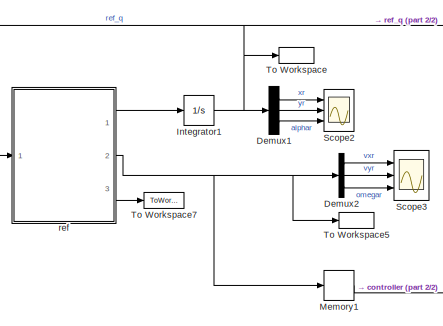
[diagram: root canvas - part 1/2, top left region]
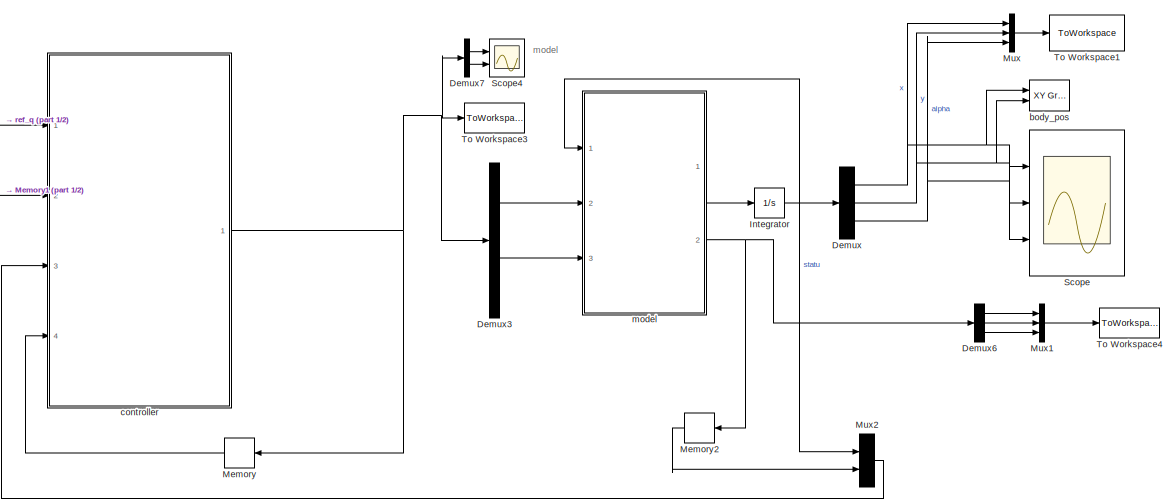
[diagram: root canvas - part 2/2, center side, full height]
MODEL slx_228549e2a371
KIND model
CONFIG AbsTol = auto
CONFIG EnableMultiTasking = off
CONFIG FixedStep = 0.05
CONFIG MaxStep = 0.05
CONFIG MinStep = auto
CONFIG RelTol = 1e-3
CONFIG SampleTimeConstraint = Unconstrained
CONFIG Solver = VariableStepAuto
CONFIG SolverName = VariableStepAuto
CONFIG StartTime = 0.0
CONFIG StopTime = 30
BLOCK [Demux] Demux
  DisplayOption = bar
  Outputs = 3
  Ports = [1, 3]
BLOCK [Demux] Demux1
  DisplayOption = bar
  Outputs = 3
  Ports = [1, 3]
BLOCK [Demux] Demux2
  DisplayOption = bar
  Outputs = 3
  Ports = [1, 3]
BLOCK [Demux] Demux3
  DisplayOption = bar
  Outputs = 2
  Ports = [1, 2]
BLOCK [Demux] Demux6
  DisplayOption = bar
  Outputs = 3
  Ports = [1, 3]
BLOCK [Demux] Demux7
  DisplayOption = bar
  Outputs = 2
  Ports = [1, 2]
BLOCK [Integrator] Integrator
  IgnoreLimit = on
  InitialCondition = [0; 0; pi/4;]
  Ports = [1, 1]
BLOCK [Integrator] Integrator1
  InitialCondition = [0;0;pi/4]
  Ports = [1, 1]
BLOCK [Memory] Memory
  X0 = [0; 0]
BLOCK [Memory] Memory1
  X0 = [0.00001; 0.00001 ; 0.000001]
BLOCK [Memory] Memory2
  X0 = [0.001 0 0]
BLOCK [Mux] Mux
  DisplayOption = bar
  Inputs = 3
  Ports = [3, 1]
BLOCK [Mux] Mux1
  DisplayOption = bar
  Inputs = 3
  Ports = [3, 1]
BLOCK [Mux] Mux2
  DisplayOption = bar
  Inputs = 2
  Ports = [2, 1]
BLOCK [Scope] Scope
  NumInputPorts = 3
  Ports = [3]
  ScopeSpecificationString = Simulink.scopes.TimeScopeBlockCfg('CurrentConfiguration', extmgr.ConfigurationSet(extmgr.Configuration('Core','General UI',true),extmgr.Configuration('Core','Source UI',true),extmgr.Configuration('Sources','WiredSimulink',true,'DataLoggingVariableName','ScopeData1'),extmgr.Configuration('Visuals','Time Domain',true,'SerializedDisplays',{struct('MinYLimReal','-4.45166','MaxYLimReal','2.71685','YLab...<+2688ch>
BLOCK [Scope] Scope2
  NumInputPorts = 3
  Ports = [3]
  ScopeSpecificationString = Simulink.scopes.TimeScopeBlockCfg('CurrentConfiguration', extmgr.ConfigurationSet(extmgr.Configuration('Core','General UI',true),extmgr.Configuration('Core','Source UI',true),extmgr.Configuration('Sources','WiredSimulink',true,'DataLoggingVariableName','ScopeData3'),extmgr.Configuration('Visuals','Time Domain',true,'SerializedDisplays',{struct('MinYLimReal','-4.5','MaxYLimReal','0.5','YLabelReal',...<+2773ch>
BLOCK [Scope] Scope3
  NumInputPorts = 3
  Ports = [3]
  ScopeSpecificationString = Simulink.scopes.TimeScopeBlockCfg('CurrentConfiguration', extmgr.ConfigurationSet(extmgr.Configuration('Core','General UI',true),extmgr.Configuration('Core','Source UI',true),extmgr.Configuration('Sources','WiredSimulink',true,'DataLoggingVariableName','ScopeData4'),extmgr.Configuration('Visuals','Time Domain',true,'SerializedDisplays',{struct('MinYLimReal','0.9','MaxYLimReal','1.1','YLabelReal','...<+2743ch>
BLOCK [Scope] Scope4
  NumInputPorts = 2
  Ports = [2]
  ScopeSpecificationString = Simulink.scopes.TimeScopeBlockCfg('CurrentConfiguration', extmgr.ConfigurationSet(extmgr.Configuration('Core','General UI',true),extmgr.Configuration('Core','Source UI',true),extmgr.Configuration('Sources','WiredSimulink',true,'DataLoggingVariableName','ScopeData1'),extmgr.Configuration('Visuals','Time Domain',true,'SerializedDisplays',{struct('MinYLimReal','-3154.38477','MaxYLimReal','2134.35305'...<+2064ch>
BLOCK [ToWorkspace] To Workspace
  FixptAsFi = on
  MaxDataPoints = inf
  Ports = [1]
  SampleTime = -1
  Save2DSignal = 3-D array (concatenate along third dimension)
  VariableName = ref_q
BLOCK [ToWorkspace] To Workspace1
  FixptAsFi = on
  MaxDataPoints = inf
  Ports = [1]
  SampleTime = -1
  Save2DSignal = 3-D array (concatenate along third dimension)
  VariableName = body_position
BLOCK [ToWorkspace] To Workspace3
  FixptAsFi = on
  MaxDataPoints = inf
  Ports = [1]
  SampleTime = -1
  Save2DSignal = 3-D array (concatenate along third dimension)
  VariableName = control_u
BLOCK [ToWorkspace] To Workspace4
  FixptAsFi = on
  MaxDataPoints = inf
  Ports = [1]
  SampleTime = -1
  Save2DSignal = 3-D array (concatenate along third dimension)
  VariableName = body_vel
BLOCK [ToWorkspace] To Workspace5
  FixptAsFi = on
  MaxDataPoints = inf
  Ports = [1]
  SampleTime = -1
  Save2DSignal = 3-D array (concatenate along third dimension)
  VariableName = ref_vel
BLOCK [ToWorkspace] To Workspace7
  FixptAsFi = on
  MaxDataPoints = inf
  Ports = [1]
  SampleTime = -1
  Save2DSignal = 3-D array (concatenate along third dimension)
  VariableName = ref_f
BLOCK [Reference] body_pos  REF=simulink/Sinks/XY Graph
  Ports = [2]
  SourceBlock = simulink/Sinks/XY Graph
  SourceProductBaseCode = SL
  SourceProductName = Simulink
  SourceType = XY scope.
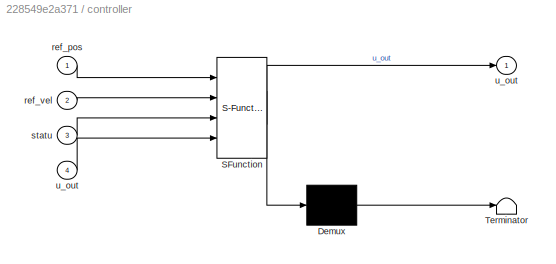
BLOCK [SubSystem] controller
  ErrorFcn = Stateflow.Translate.translate
  PermitHierarchicalResolution = ExplicitOnly
  Ports = [4, 1]
  RequestExecContextInheritance = off
  SFBlockType = MATLAB Function
  TreatAsAtomicUnit = on
  Variant = off
BLOCK [Demux] controller/ Demux 
  Outputs = 1
  Ports = [1, 1]
BLOCK [S-Function] controller/ SFunction 
  EnableBusSupport = on
  FunctionName = sf_sfun
  PortCounts = [4 2]
  Ports = [4, 2]
  SFcnIsStateOwnerBlock = off
  SFunctionDeploymentMode = off
  Tag = Stateflow S-Function Copy_of_sim2020_7_21 1
BLOCK [Terminator] controller/ Terminator 
BLOCK [Inport] controller/ref_pos
  IconDisplay = Port number
BLOCK [Inport] controller/ref_vel
  IconDisplay = Port number
  Port = 2
BLOCK [Inport] controller/statu
  IconDisplay = Port number
  Port = 3
BLOCK [Outport] controller/u_out
  IconDisplay = Port number
BLOCK [Inport] controller/u_out 
  IconDisplay = Port number
  Port = 4
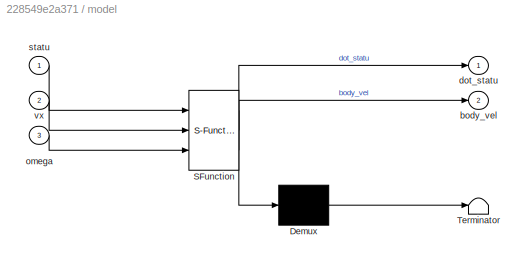
BLOCK [SubSystem] model
  ErrorFcn = Stateflow.Translate.translate
  PermitHierarchicalResolution = ExplicitOnly
  Ports = [3, 2]
  RequestExecContextInheritance = off
  SFBlockType = MATLAB Function
  TreatAsAtomicUnit = on
  Variant = off
BLOCK [Demux] model/ Demux 
  Outputs = 1
  Ports = [1, 1]
BLOCK [S-Function] model/ SFunction 
  EnableBusSupport = on
  FunctionName = sf_sfun
  PortCounts = [3 3]
  Ports = [3, 3]
  SFcnIsStateOwnerBlock = off
  SFunctionDeploymentMode = off
  Tag = Stateflow S-Function Copy_of_sim2020_7_21 2
BLOCK [Terminator] model/ Terminator 
BLOCK [Outport] model/body_vel
  IconDisplay = Port number
  Port = 2
BLOCK [Outport] model/dot_statu
  IconDisplay = Port number
BLOCK [Inport] model/omega
  IconDisplay = Port number
  Port = 3
BLOCK [Inport] model/statu
  IconDisplay = Port number
BLOCK [Inport] model/vx
  IconDisplay = Port number
  Port = 2
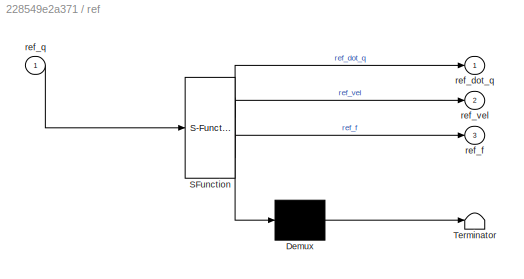
BLOCK [SubSystem] ref
  ErrorFcn = Stateflow.Translate.translate
  PermitHierarchicalResolution = ExplicitOnly
  Ports = [1, 3]
  RequestExecContextInheritance = off
  SFBlockType = MATLAB Function
  TreatAsAtomicUnit = on
  Variant = off
BLOCK [Demux] ref/ Demux 
  Outputs = 1
  Ports = [1, 1]
BLOCK [S-Function] ref/ SFunction 
  EnableBusSupport = on
  FunctionName = sf_sfun
  PortCounts = [1 4]
  Ports = [1, 4]
  SFcnIsStateOwnerBlock = off
  SFunctionDeploymentMode = off
  Tag = Stateflow S-Function Copy_of_sim2020_7_21 4
BLOCK [Terminator] ref/ Terminator 
BLOCK [Outport] ref/ref_dot_q
  IconDisplay = Port number
BLOCK [Outport] ref/ref_f
  IconDisplay = Port number
  Port = 3
BLOCK [Inport] ref/ref_q
  IconDisplay = Port number
BLOCK [Outport] ref/ref_vel
  IconDisplay = Port number
  Port = 2
ANNOTATION (root): model
LINE Demux1:1 -> Scope2:1
LINE Demux1:2 -> Scope2:2
LINE Demux1:3 -> Scope2:3
LINE Demux2:1 -> Scope3:1
LINE Demux2:2 -> Scope3:2
LINE Demux2:3 -> Scope3:3
LINE Demux3:1 -> model:2
LINE Demux3:2 -> model:3
LINE Demux6:1 -> Mux1:1
LINE Demux6:2 -> Mux1:2
LINE Demux6:3 -> Mux1:3
LINE Demux7:1 -> Scope4:1
LINE Demux7:2 -> Scope4:2
NET Demux:1 -> Mux:1, Scope:1, body_pos:1
NET Demux:2 -> Mux:2, Scope:2, body_pos:2
NET Demux:3 -> Mux:3, Scope:3
NET Integrator1:1 -> Demux1:1, To Workspace:1, controller:1, ref:1
NET Integrator:1 -> Demux:1, Mux2:1, model:1
LINE Memory1:1 -> controller:2
LINE Memory2:1 -> Mux2:2
LINE Memory:1 -> controller:4
LINE Mux1:1 -> To Workspace4:1
LINE Mux2:1 -> controller:3
LINE Mux:1 -> To Workspace1:1
NET controller:1 -> Demux3:1, Demux7:1, Memory:1, To Workspace3:1
LINE model:1 -> Integrator:1
NET model:2 -> Demux6:1, Memory2:1
LINE ref:1 -> Integrator1:1
NET ref:2 -> Demux2:1, Memory1:1, To Workspace5:1
LINE ref:3 -> To Workspace7:1
note: NET lines group one-source signal fan-out (src -> all destinations, sorted); 1:1 wires keep LINE
CHART controller states=1 transitions=1
  STATE_LABEL 'eML_blk_kernel()'
  STATE_LABEL 'SCRIPT:\nfunction u_out  = my_MPC_controller(ref_pos, ref_vel, statu, u_out)\n\n% 程序上没有问题，在运动学模型上是可以完成任务的\n% 最近修改时间：7.25 \n% 基于运动学模型的MPC控制器\n% u_out=[vx ;  omega]\n% ref_vel=[xr yr alphar vr omegar]\n% e = [ex ey ealpha]\n\nNc= 10; Np=20; %预测时域Np\t控制时域Nc\nT=0.05; \n\n% 测试是否能得到\n%    statu=[2; -2; pi/2; 0.001; 0.001; 0.001];\n%    u_out=[0; 0];\n%    ref_pos=[0;0;pi/4]; ref_vel=[2; 0; 0];  \n%% 底盘参数\nd = 0.18;\tl = 0....<+2799ch>'
CHART model states=1 transitions=1
  STATE_LABEL 'eML_blk_kernel()'
  STATE_LABEL 'SCRIPT:\nfunction [dot_statu, body_vel] = model(statu, vx ,omega)\n\nx = statu(1);\ny = statu(2);\nalpha = statu(3);\n\ndot_x = vx*cos(alpha);\ndot_y = vx*sin(alpha);\ndot_alpha = omega;\n\n\n\n% 状态【x y alpha vx vy omega】\ndot_statu = [dot_x; dot_y; dot_alpha];\nvy=0;\nbody_vel=[vx;vy; omega]\n\n\nend\n\n% max=1/wheel_radius;\n% for i=1:size(wheel_omega,2)\n%     if wheel_omega(i)>max\n%         wheel_omega(i) = max;\n%  ...<+170ch>'
CHART ref states=1 transitions=1
  STATE_LABEL 'eML_blk_kernel()'
  STATE_LABEL 'SCRIPT:\n%参考轨迹\n%更改时，只需更改vx和Omega即可，实现圆形和直线的不同变化\n\n\n\nfunction [ref_dot_q,ref_vel,ref_f] = fcn(ref_q)\nxr=ref_q(1);\nyr=ref_q(2);\nalphar=ref_q(3);\n\nvxr=1;\nvyr=0;\nomegar=0.5;\n\nref_vel=[vxr;vyr;omegar];\n\ndotx = vxr*cos(alphar) - vyr*sin(alphar);\ndoty = vxr*sin(alphar) + vyr*sin(alphar);\ndotalpha = omegar;\nref_dot_q=[dotx;doty;dotalpha];\n\nref_f = [0;0]\nend\n'
